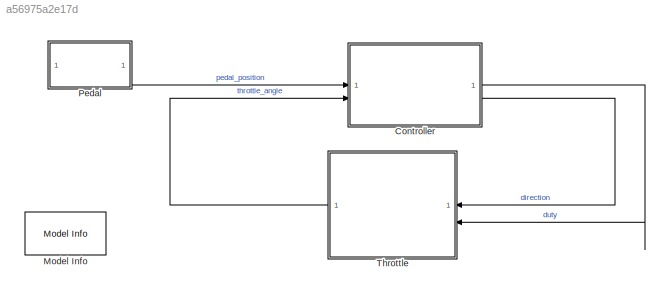
MODEL slx_a56975a2e17d
KIND model
CONFIG AbsTol = auto
CONFIG EnableMultiTasking = on
CONFIG FixedStep = auto
CONFIG MaxStep = auto
CONFIG MinStep = auto
CONFIG PreLoadFcn = J = 2.45e-4;\nVrise = 0.6;\nVdrop = 0.0;\nVfree = 1.83;\nVclose  = 0.5;\nVopen = 4.5;\nKp = 0.3;\nKi = 2.0;\nTs = .01;
CONFIG RelTol = 1e-3
CONFIG SampleTimeConstraint = Unconstrained
CONFIG SolverName = ode45
CONFIG StartTime = 0.0
CONFIG StopTime = 20.0
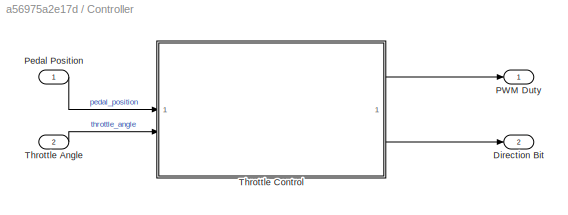
BLOCK [SubSystem] Controller
BLOCK [Outport] Controller/Direction Bit
  Port = 2
BLOCK [Outport] Controller/PWM Duty
BLOCK [Inport] Controller/Pedal Position
BLOCK [Inport] Controller/Throttle Angle
  Port = 2
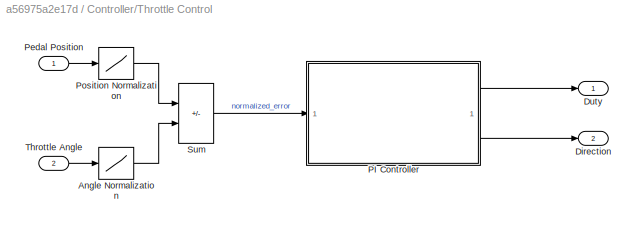
BLOCK [SubSystem] Controller/Throttle Control
BLOCK [Lookup] Controller/Throttle Control/Angle Normalization
  InputValues = [Vfree Vopen]
  LookUpMeth = Interpolation-Use End Values
  OutDataTypeStr = double
  SaturateOnIntegerOverflow = off
  Table = [0 1]
BLOCK [Outport] Controller/Throttle Control/Direction
  Port = 2
BLOCK [Outport] Controller/Throttle Control/Duty
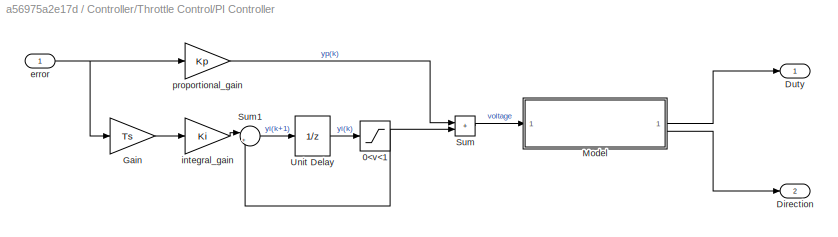
BLOCK [SubSystem] Controller/Throttle Control/PI Controller
BLOCK [Saturate] Controller/Throttle Control/PI Controller/0<v<1
  LowerLimit = 0
  UpperLimit = 1
BLOCK [Outport] Controller/Throttle Control/PI Controller/Direction
  Port = 2
BLOCK [Outport] Controller/Throttle Control/PI Controller/Duty
BLOCK [Gain] Controller/Throttle Control/PI Controller/Gain
  Gain = Ts
  OutDataTypeStr = Inherit: Same as input
  ParamDataTypeStr = Inherit: Same as input
  SaturateOnIntegerOverflow = on
BLOCK [ModelReference] Controller/Throttle Control/PI Controller/Model
  ModelNameDialog = u2dd_ml.slx
  ModelReferenceVersion = 1.3
BLOCK [Sum] Controller/Throttle Control/PI Controller/Sum
  IconShape = rectangular
  InputSameDT = on
  OutDataTypeStr = Inherit: Same as first input
  SaturateOnIntegerOverflow = on
BLOCK [Sum] Controller/Throttle Control/PI Controller/Sum1
  InputSameDT = on
  Inputs = |++
  OutDataTypeStr = Inherit: Same as first input
  SaturateOnIntegerOverflow = on
BLOCK [UnitDelay] Controller/Throttle Control/PI Controller/Unit Delay
  AttributesFormatString = yi0 = %<X0>\n\n
  SampleTime = .01
BLOCK [Inport] Controller/Throttle Control/PI Controller/error
  SampleTime = Ts
BLOCK [Gain] Controller/Throttle Control/PI Controller/integral_gain
  Gain = Ki
  OutDataTypeStr = Inherit: Same as input
  ParamDataTypeStr = Inherit: Same as input
  SaturateOnIntegerOverflow = on
BLOCK [Gain] Controller/Throttle Control/PI Controller/proportional_gain
  Gain = Kp
  OutDataTypeStr = Inherit: Same as input
  ParamDataTypeStr = Inherit: Same as input
  SaturateOnIntegerOverflow = on
BLOCK [Inport] Controller/Throttle Control/Pedal Position
BLOCK [Lookup] Controller/Throttle Control/Position Normalization
  InputValues = [Vdrop Vrise]
  LookUpMeth = Interpolation-Use End Values
  OutDataTypeStr = double
  SaturateOnIntegerOverflow = off
  Table = [1 0]
BLOCK [Sum] Controller/Throttle Control/Sum
  IconShape = rectangular
  Inputs = +-
BLOCK [Inport] Controller/Throttle Control/Throttle Angle
  Port = 2
BLOCK [Reference] Model Info  REF=simulink/Model-Wide
Utilities/Model Info
  SourceBlock = simulink/Model-Wide\nUtilities/Model Info
  SourceType = CMBlock
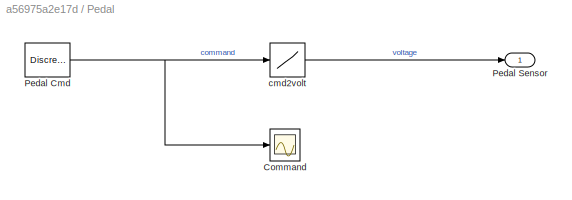
BLOCK [SubSystem] Pedal
BLOCK [Scope] Pedal/Command
  Floating = off
  NumInputPorts = 1
  ScopeSpecificationString = Simulink.scopes.TimeScopeBlockCfg('CurrentConfiguration', extmgr.ConfigurationSet(extmgr.Configuration('Core','General UI',true),extmgr.Configuration('Core','Source UI',true),extmgr.Configuration('Sources','WiredSimulink',true,'DataLoggingVariableName','ScopeData1','DataLoggingSaveFormat','StructureWithTime','DataLoggingDecimation','1','DataLoggingDecimateData',true),extmgr.Configuration('Visuals'...<+1700ch>
BLOCK [DiscretePulseGenerator] Pedal/Pedal Cmd
  Amplitude = 0.9
  Period = 10
  PhaseDelay = 2.5
  PulseType = Time based
  PulseWidth = 50
BLOCK [Outport] Pedal/Pedal Sensor
BLOCK [Lookup] Pedal/cmd2volt
  InputValues = [0 1]
  LookUpMeth = Interpolation-Use End Values
  SaturateOnIntegerOverflow = off
  Table = [Vrise Vdrop]
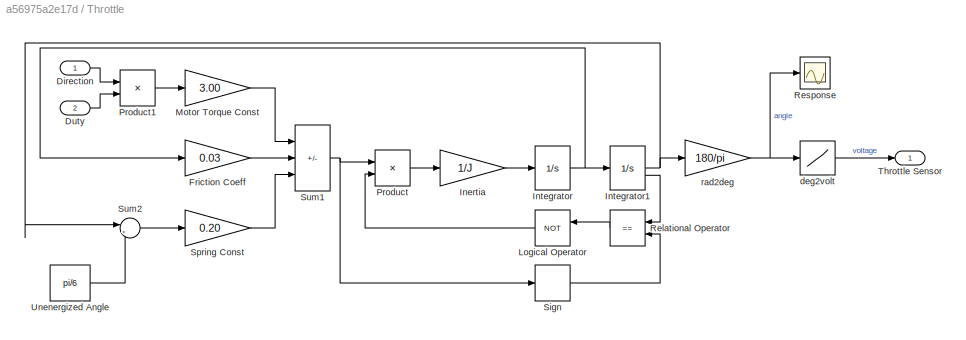
BLOCK [SubSystem] Throttle
BLOCK [Inport] Throttle/Direction
BLOCK [Inport] Throttle/Duty
  Port = 2
BLOCK [Gain] Throttle/Friction Coeff
  Gain = 0.03
  OutDataTypeStr = Inherit: Same as input
  ParamDataTypeStr = Inherit: Same as input
  SaturateOnIntegerOverflow = on
BLOCK [Gain] Throttle/Inertia
  Gain = 1/J
  OutDataTypeStr = Inherit: Same as input
  ParamDataTypeStr = Inherit: Same as input
  SaturateOnIntegerOverflow = on
BLOCK [Integrator] Throttle/Integrator
BLOCK [Integrator] Throttle/Integrator1
  AttributesFormatString = %<LowerSaturationLimit> < th < %<UpperSaturationLimit>
  InitialCondition = pi/6
  LimitOutput = on
  LowerSaturationLimit = 0
  ShowSaturationPort = on
  UpperSaturationLimit = pi/2
BLOCK [Logic] Throttle/Logical Operator
  AllPortsSameDT = off
  Operator = NOT
BLOCK [Gain] Throttle/Motor Torque Const
  Gain = 3.00
  OutDataTypeStr = Inherit: Same as input
  ParamDataTypeStr = Inherit: Same as input
  SaturateOnIntegerOverflow = on
BLOCK [Product] Throttle/Product
  OutDataTypeStr = Inherit: Same as first input
  SaturateOnIntegerOverflow = on
BLOCK [Product] Throttle/Product1
  OutDataTypeStr = Inherit: Same as first input
  SaturateOnIntegerOverflow = on
BLOCK [RelationalOperator] Throttle/Relational Operator
  InputSameDT = off
  Operator = ==
BLOCK [Scope] Throttle/Response
  Floating = off
  NumInputPorts = 1
  ScopeSpecificationString = Simulink.scopes.TimeScopeBlockCfg('CurrentConfiguration', extmgr.ConfigurationSet(extmgr.Configuration('Core','General UI',true),extmgr.Configuration('Core','Source UI',true),extmgr.Configuration('Sources','WiredSimulink',true,'DataLoggingVariableName','ScopeData2','DataLoggingSaveFormat','StructureWithTime','DataLoggingDecimation','1','DataLoggingDecimateData',true),extmgr.Configuration('Visuals'...<+1693ch>
BLOCK [Signum] Throttle/Sign
BLOCK [Gain] Throttle/Spring Const
  Gain = 0.20
  OutDataTypeStr = Inherit: Same as input
  ParamDataTypeStr = Inherit: Same as input
  SaturateOnIntegerOverflow = on
BLOCK [Sum] Throttle/Sum1
  IconShape = rectangular
  Inputs = +--
  SaturateOnIntegerOverflow = on
BLOCK [Sum] Throttle/Sum2
  Inputs = |+-
  SaturateOnIntegerOverflow = on
BLOCK [Outport] Throttle/Throttle Sensor
BLOCK [Constant] Throttle/Unenergized Angle
  Value = pi/6
BLOCK [Lookup] Throttle/deg2volt
  InputValues = [0 90]
  LookUpMeth = Interpolation-Use End Values
  OutDataTypeStr = double
  SaturateOnIntegerOverflow = off
  Table = [Vclose Vopen]
BLOCK [Gain] Throttle/rad2deg
  Gain = 180/pi
  OutDataTypeStr = Inherit: Same as input
  ParamDataTypeStr = Inherit: Same as input
  SaturateOnIntegerOverflow = on
LINE Controller/Pedal Position:1 -> Controller/Throttle Control:1
LINE Controller/Throttle Angle:1 -> Controller/Throttle Control:2
LINE Controller/Throttle Control/Angle Normalization:1 -> Controller/Throttle Control/Sum:2
NET Controller/Throttle Control/PI Controller/0<v<1:1 -> Controller/Throttle Control/PI Controller/Sum1:2, Controller/Throttle Control/PI Controller/Sum:2
LINE Controller/Throttle Control/PI Controller/Gain:1 -> Controller/Throttle Control/PI Controller/integral_gain:1
LINE Controller/Throttle Control/PI Controller/Model:1 -> Controller/Throttle Control/PI Controller/Duty:1
LINE Controller/Throttle Control/PI Controller/Model:2 -> Controller/Throttle Control/PI Controller/Direction:1
LINE Controller/Throttle Control/PI Controller/Sum1:1 -> Controller/Throttle Control/PI Controller/Unit Delay:1
LINE Controller/Throttle Control/PI Controller/Sum:1 -> Controller/Throttle Control/PI Controller/Model:1
LINE Controller/Throttle Control/PI Controller/Unit Delay:1 -> Controller/Throttle Control/PI Controller/0<v<1:1
NET Controller/Throttle Control/PI Controller/error:1 -> Controller/Throttle Control/PI Controller/Gain:1, Controller/Throttle Control/PI Controller/proportional_gain:1
LINE Controller/Throttle Control/PI Controller/integral_gain:1 -> Controller/Throttle Control/PI Controller/Sum1:1
LINE Controller/Throttle Control/PI Controller/proportional_gain:1 -> Controller/Throttle Control/PI Controller/Sum:1
LINE Controller/Throttle Control/PI Controller:1 -> Controller/Throttle Control/Duty:1
LINE Controller/Throttle Control/PI Controller:2 -> Controller/Throttle Control/Direction:1
LINE Controller/Throttle Control/Pedal Position:1 -> Controller/Throttle Control/Position Normalization:1
LINE Controller/Throttle Control/Position Normalization:1 -> Controller/Throttle Control/Sum:1
LINE Controller/Throttle Control/Sum:1 -> Controller/Throttle Control/PI Controller:1
LINE Controller/Throttle Control/Throttle Angle:1 -> Controller/Throttle Control/Angle Normalization:1
LINE Controller/Throttle Control:1 -> Controller/PWM Duty:1
LINE Controller/Throttle Control:2 -> Controller/Direction Bit:1
LINE Controller:1 -> Throttle:2
LINE Controller:2 -> Throttle:1
NET Pedal/Pedal Cmd:1 -> Pedal/Command:1, Pedal/cmd2volt:1
LINE Pedal/cmd2volt:1 -> Pedal/Pedal Sensor:1
LINE Pedal:1 -> Controller:1
LINE Throttle/Direction:1 -> Throttle/Product1:1
LINE Throttle/Duty:1 -> Throttle/Product1:2
LINE Throttle/Friction Coeff:1 -> Throttle/Sum1:2
LINE Throttle/Inertia:1 -> Throttle/Integrator:1
NET Throttle/Integrator1:1 -> Throttle/Sum2:1, Throttle/rad2deg:1
LINE Throttle/Integrator1:2 -> Throttle/Relational Operator:1
NET Throttle/Integrator:1 -> Throttle/Friction Coeff:1, Throttle/Integrator1:1
LINE Throttle/Logical Operator:1 -> Throttle/Product:2
LINE Throttle/Motor Torque Const:1 -> Throttle/Sum1:1
LINE Throttle/Product1:1 -> Throttle/Motor Torque Const:1
LINE Throttle/Product:1 -> Throttle/Inertia:1
LINE Throttle/Relational Operator:1 -> Throttle/Logical Operator:1
LINE Throttle/Sign:1 -> Throttle/Relational Operator:2
LINE Throttle/Spring Const:1 -> Throttle/Sum1:3
NET Throttle/Sum1:1 -> Throttle/Product:1, Throttle/Sign:1
LINE Throttle/Sum2:1 -> Throttle/Spring Const:1
LINE Throttle/Unenergized Angle:1 -> Throttle/Sum2:2
LINE Throttle/deg2volt:1 -> Throttle/Throttle Sensor:1
NET Throttle/rad2deg:1 -> Throttle/Response:1, Throttle/deg2volt:1
LINE Throttle:1 -> Controller:2
note: NET lines group one-source signal fan-out (src -> all destinations, sorted); 1:1 wires keep LINE
